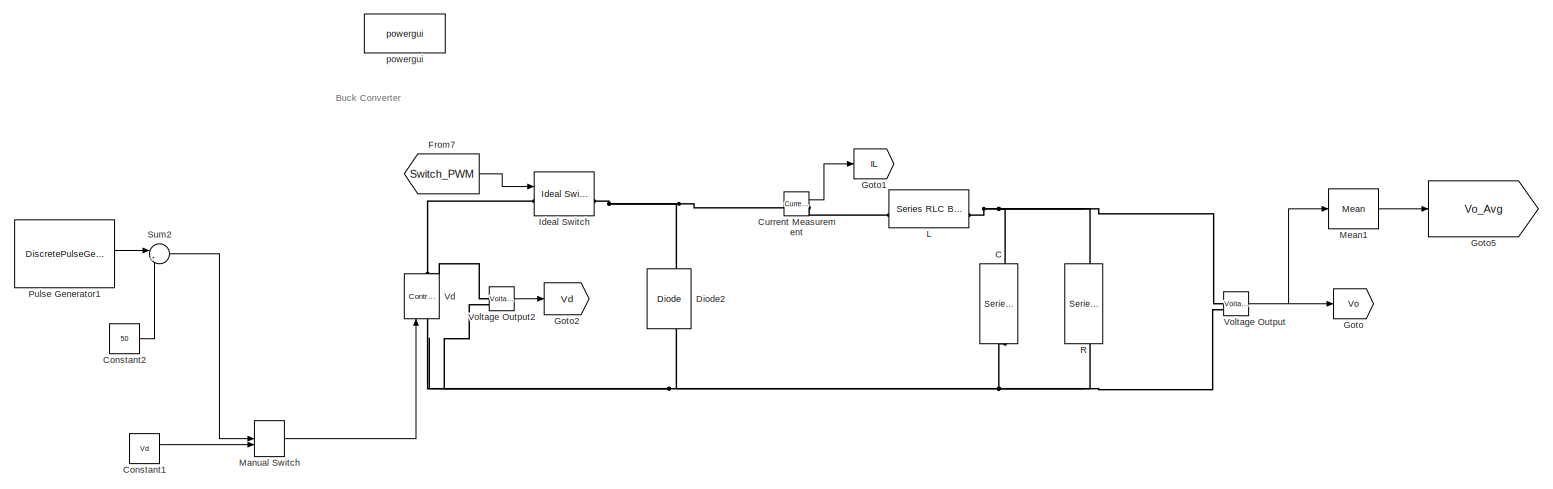
[diagram: root canvas - part 1/4, top center region]
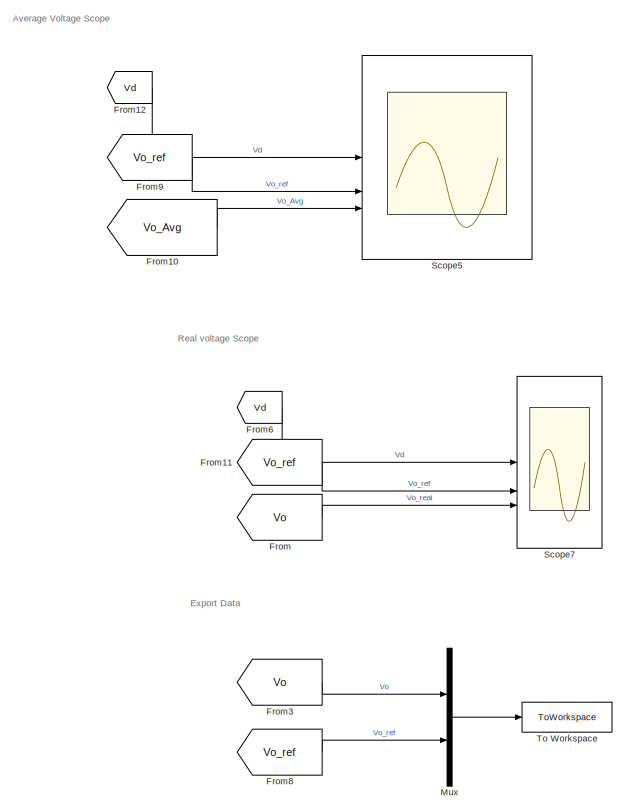
[diagram: root canvas - part 2/4, right side, full height]
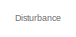
[diagram: root canvas - part 3/4, top left region]
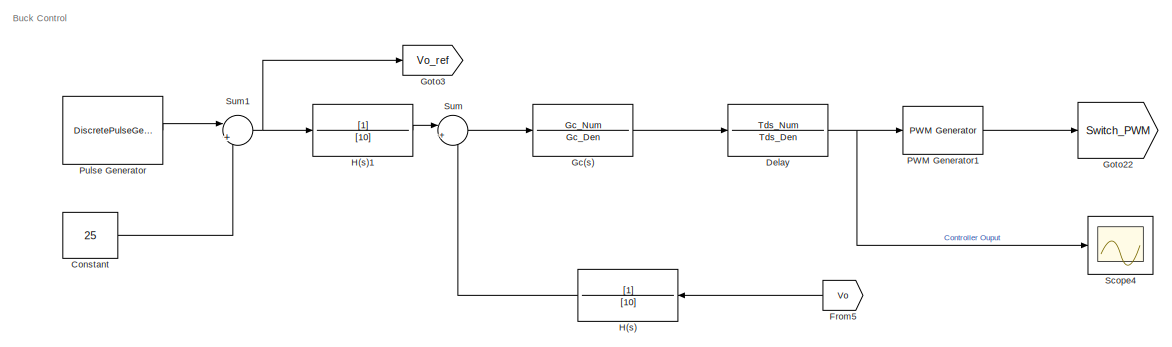
[diagram: root canvas - part 4/4, bottom center region]
MODEL slx_dc055e8ad060
KIND model
CONFIG AbsTol = auto
CONFIG EnableMultiTasking = off
CONFIG FixedStep = auto
CONFIG MaxStep = auto
CONFIG MinStep = auto
CONFIG RelTol = 1e-6
CONFIG SampleTimeConstraint = Unconstrained
CONFIG SolverName = VariableStepAuto
CONFIG StartTime = 0.0
CONFIG StopTime = 0.5
BLOCK [Reference] C  REF=spsSeriesRLCBranchLib/Series RLC Branch
  LibrarySourceBlock = sps_lib/Passives/Series RLC Branch
  NameLocation = left
  SourceBlock = spsSeriesRLCBranchLib/Series RLC Branch
  SourceType = Series RLC Branch
BLOCK [Constant] Constant
  Value = 25
BLOCK [Constant] Constant1
  Value = Vd
BLOCK [Constant] Constant2
  Value = 50
BLOCK [Reference] Current Measurement  REF=spsCurrentMeasurementLib/Current Measurement
  LibrarySourceBlock = sps_lib/Sensors and Measurements/Current Measurement
  SourceBlock = spsCurrentMeasurementLib/Current Measurement
  SourceType = Current Measurement
  UserDataPersistent = on
BLOCK [TransferFcn] Delay
  Denominator = Tds_Den
  Numerator = Tds_Num
BLOCK [Reference] Diode2  REF=spsDiodeLib/Diode
  LibrarySourceBlock = sps_lib/Power Electronics/Diode
  NameLocation = right
  SourceBlock = spsDiodeLib/Diode
  SourceType = Diode
BLOCK [From] From
  GotoTag = Vo
BLOCK [From] From10
  GotoTag = Vo_Avg
BLOCK [From] From11
  GotoTag = Vo_ref
  NameLocation = top
BLOCK [From] From12
  GotoTag = Vd
BLOCK [From] From3
  GotoTag = Vo
BLOCK [From] From5
  GotoTag = Vo
  NameLocation = top
BLOCK [From] From6
  GotoTag = Vd
BLOCK [From] From7
  GotoTag = Switch_PWM
BLOCK [From] From8
  GotoTag = Vo_ref
  NameLocation = top
BLOCK [From] From9
  GotoTag = Vo_ref
  NameLocation = top
BLOCK [TransferFcn] Gc(s)
  Denominator = Gc_Den
  Numerator = Gc_Num
BLOCK [Goto] Goto
  GotoTag = Vo
BLOCK [Goto] Goto1
  GotoTag = IL
  NameLocation = top
BLOCK [Goto] Goto2
  GotoTag = Vd
BLOCK [Goto] Goto22
  GotoTag = Switch_PWM
BLOCK [Goto] Goto3
  GotoTag = Vo_ref
BLOCK [Goto] Goto5
  GotoTag = Vo_Avg
BLOCK [TransferFcn] H(s)
  Denominator = [10]
  NameLocation = top
BLOCK [TransferFcn] H(s)1
  Denominator = [10]
BLOCK [Reference] Ideal Switch  REF=spsIdealSwitchLib/Ideal Switch
  LibrarySourceBlock = sps_lib/Power Electronics/Ideal Switch
  SourceBlock = spsIdealSwitchLib/Ideal Switch
  SourceType = Ideal Switch
BLOCK [Reference] L  REF=spsSeriesRLCBranchLib/Series RLC Branch
  LibrarySourceBlock = sps_lib/Passives/Series RLC Branch
  SourceBlock = spsSeriesRLCBranchLib/Series RLC Branch
  SourceType = Series RLC Branch
BLOCK [ManualSwitch] Manual Switch
  CurrentSetting = 0
BLOCK [Reference] Mean1  REF=spsMeanLib/Mean
  LibrarySourceBlock = sps_lib/Sensors and Measurements/Mean
  SourceBlock = spsMeanLib/Mean
  SourceType = Mean
BLOCK [Mux] Mux
  DisplayOption = bar
  Inputs = 2
BLOCK [Reference] PWM Generator1  REF=eePwmGenerator/PWM Generator
  LibrarySourceBlock = ee_sl_lib/Pulse Width\nModulation/PWM Generator
  SourceBlock = eePwmGenerator/PWM Generator
  SourceType = PWM Generator
BLOCK [DiscretePulseGenerator] Pulse Generator
  Amplitude = 20
  Period = 0.5
  PhaseDelay = 0.2
  PulseType = Time based
  PulseWidth = 50
BLOCK [DiscretePulseGenerator] Pulse Generator1
  Amplitude = 20
  Period = 0.5
  PhaseDelay = 0.1
  PulseType = Time based
  PulseWidth = 50
BLOCK [Reference] R  REF=spsSeriesRLCBranchLib/Series RLC Branch
  LibrarySourceBlock = sps_lib/Passives/Series RLC Branch
  NameLocation = right
  SourceBlock = spsSeriesRLCBranchLib/Series RLC Branch
  SourceType = Series RLC Branch
BLOCK [Scope] Scope4
  Floating = off
  NumInputPorts = 1
  ScopeSpecificationString = Simulink.scopes.TimeScopeBlockCfg('CurrentConfiguration', extmgr.ConfigurationSet(extmgr.Configuration('Core','General UI',true),extmgr.Configuration('Core','Source UI',true),extmgr.Configuration('Sources','WiredSimulink',true,'DataLoggingVariableName','ScopeData6'),extmgr.Configuration('Visuals','Time Domain',true,'SerializedDisplays',{struct('MinYLimReal','-0.11327','MaxYLimReal','1.01316','YLab...<+1412ch>
BLOCK [Scope] Scope5
  Floating = off
  NumInputPorts = 3
  ScopeSpecificationString = Simulink.scopes.TimeScopeBlockCfg('CurrentConfiguration', extmgr.ConfigurationSet(extmgr.Configuration('Core','General UI',true),extmgr.Configuration('Core','Source UI',true),extmgr.Configuration('Sources','WiredSimulink',true,'DataLoggingVariableName','ScopeData2'),extmgr.Configuration('Visuals','Time Domain',true,'SerializedDisplays',{struct('MinYLimReal','-8.76661','MaxYLimReal','78.89946','YLa...<+1790ch>
BLOCK [Scope] Scope7
  Floating = off
  NumInputPorts = 3
  ScopeSpecificationString = Simulink.scopes.TimeScopeBlockCfg('CurrentConfiguration', extmgr.ConfigurationSet(extmgr.Configuration('Core','General UI',true),extmgr.Configuration('Core','Source UI',true),extmgr.Configuration('Sources','WiredSimulink',true,'DataLoggingVariableName','ScopeData7'),extmgr.Configuration('Visuals','Time Domain',true,'SerializedDisplays',{struct('MinYLimReal','-6.35159','MaxYLimReal','57.27427','YLa...<+1791ch>
BLOCK [Sum] Sum
  Inputs = |+-
BLOCK [Sum] Sum1
  Inputs = |++
BLOCK [Sum] Sum2
  Inputs = |++
BLOCK [ToWorkspace] To Workspace
  FixptAsFi = on
  MaxDataPoints = inf
  SampleTime = -1
  SaveFormat = Structure With Time
  VariableName = simout
BLOCK [Reference] Vd  REF=spsControlledVoltageSourceLib/Controlled Voltage Source
  LibrarySourceBlock = sps_lib/Sources/Controlled Voltage Source
  NameLocation = left
  SourceBlock = spsControlledVoltageSourceLib/Controlled Voltage Source
  SourceType = Controlled Voltage Source
BLOCK [Reference] Voltage Output  REF=spsVoltageMeasurementLib/Voltage Measurement
  LibrarySourceBlock = sps_lib/Sensors and Measurements/Voltage Measurement
  SourceBlock = spsVoltageMeasurementLib/Voltage Measurement
  SourceType = Voltage Measurement
  UserDataPersistent = on
BLOCK [Reference] Voltage Output2  REF=spsVoltageMeasurementLib/Voltage Measurement
  LibrarySourceBlock = sps_lib/Sensors and Measurements/Voltage Measurement
  SourceBlock = spsVoltageMeasurementLib/Voltage Measurement
  SourceType = Voltage Measurement
  UserDataPersistent = on
BLOCK [Reference] powergui  REF=spspowerguiLib/powergui
  LibrarySourceBlock = sps_lib/powergui
  Priority = 1
  SourceBlock = spspowerguiLib/powergui
  SourceType = PSB option menu block
ANNOTATION (root): Average Voltage Scope
ANNOTATION (root): Buck Control
ANNOTATION (root): Buck Converter
ANNOTATION (root): Disturbance
ANNOTATION (root): Export Data
ANNOTATION (root): Real voltage Scope
LINE Constant1:1 -> Manual Switch:2
LINE Constant2:1 -> Sum2:2
LINE Constant:1 -> Sum1:2
LINE Current Measurement:1 -> Goto1:1
NET Delay:1 -> PWM Generator1:1, Scope4:1
LINE From10:1 -> Scope5:3
LINE From11:1 -> Scope7:2
LINE From12:1 -> Scope5:1
LINE From3:1 -> Mux:1
LINE From5:1 -> H(s):1
LINE From6:1 -> Scope7:1
LINE From7:1 -> Ideal Switch:1
LINE From8:1 -> Mux:2
LINE From9:1 -> Scope5:2
LINE From:1 -> Scope7:3
LINE Gc(s):1 -> Delay:1
LINE H(s)1:1 -> Sum:1
LINE H(s):1 -> Sum:2
LINE Manual Switch:1 -> Vd:1
LINE Mean1:1 -> Goto5:1
LINE Mux:1 -> To Workspace:1
LINE PWM Generator1:1 -> Goto22:1
LINE Pulse Generator1:1 -> Sum2:1
LINE Pulse Generator:1 -> Sum1:1
NET Sum1:1 -> Goto3:1, H(s)1:1
LINE Sum2:1 -> Manual Switch:1
LINE Sum:1 -> Gc(s):1
LINE Voltage Output2:1 -> Goto2:1
NET Voltage Output:1 -> Goto:1, Mean1:1
PNET net1: C:LConn1 -- L:RConn1 -- R:LConn1 -- Voltage Output:LConn1
PNET net2: C:RConn1 -- Diode2:LConn1 -- R:RConn1 -- Vd:LConn1 -- Voltage Output2:LConn2 -- Voltage Output:LConn2
PNET net3: Current Measurement:LConn1 -- Diode2:RConn1 -- Ideal Switch:RConn1
PLINE Current Measurement:RConn1 -- L:LConn1
PNET net4: Ideal Switch:LConn1 -- Vd:RConn1 -- Voltage Output2:LConn1
note: NET lines group one-source signal fan-out (src -> all destinations, sorted); 1:1 wires keep LINE; PNET lines group multi-terminal physical nets as a canonical sorted terminal list (undirected conserving connections); 2-terminal nets keep the pairwise PLINE form
